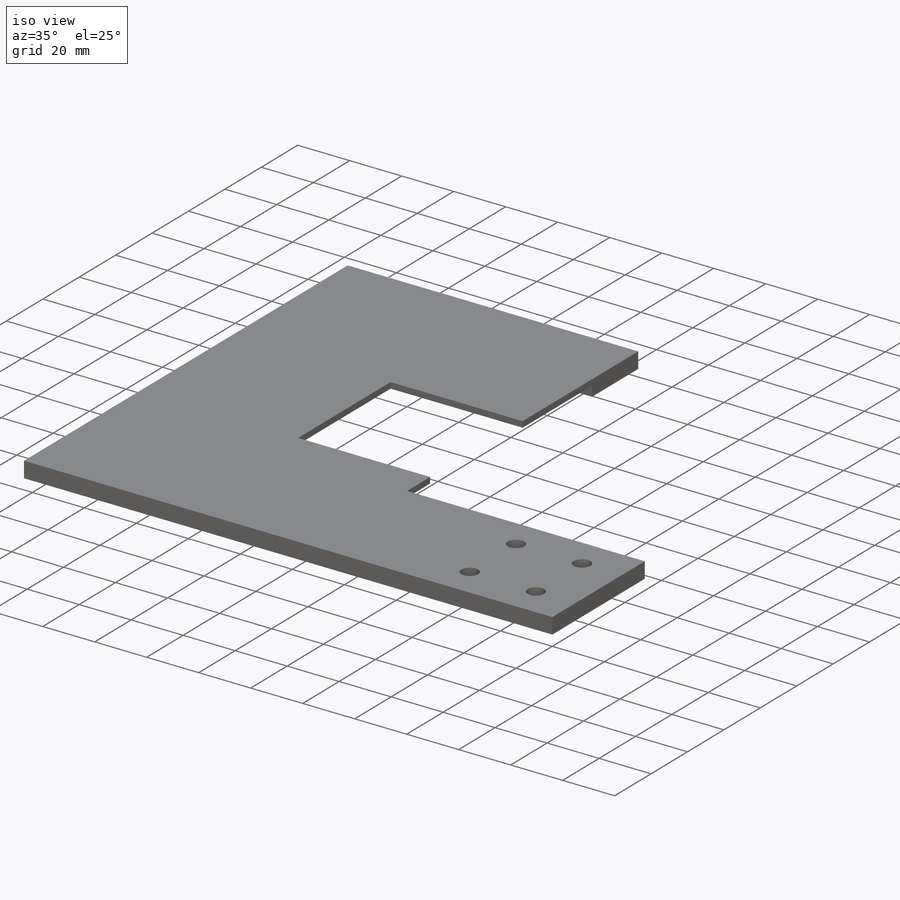
[diagram: iso view]
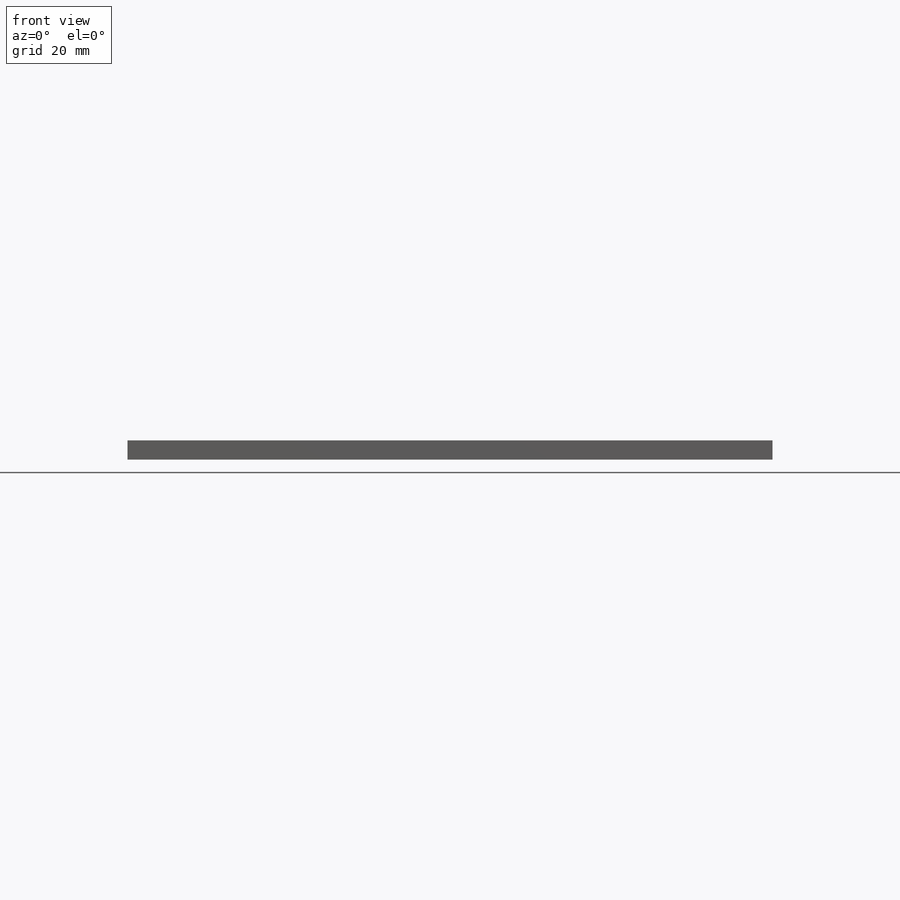
[diagram: front view]
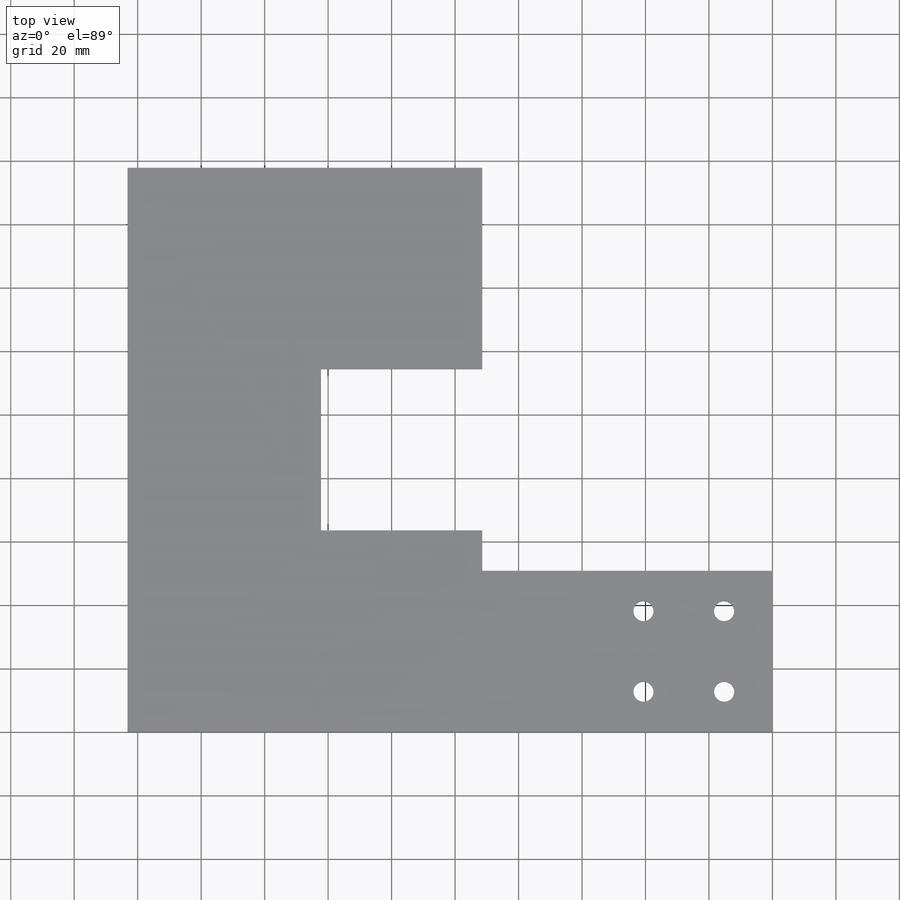
[diagram: top view]
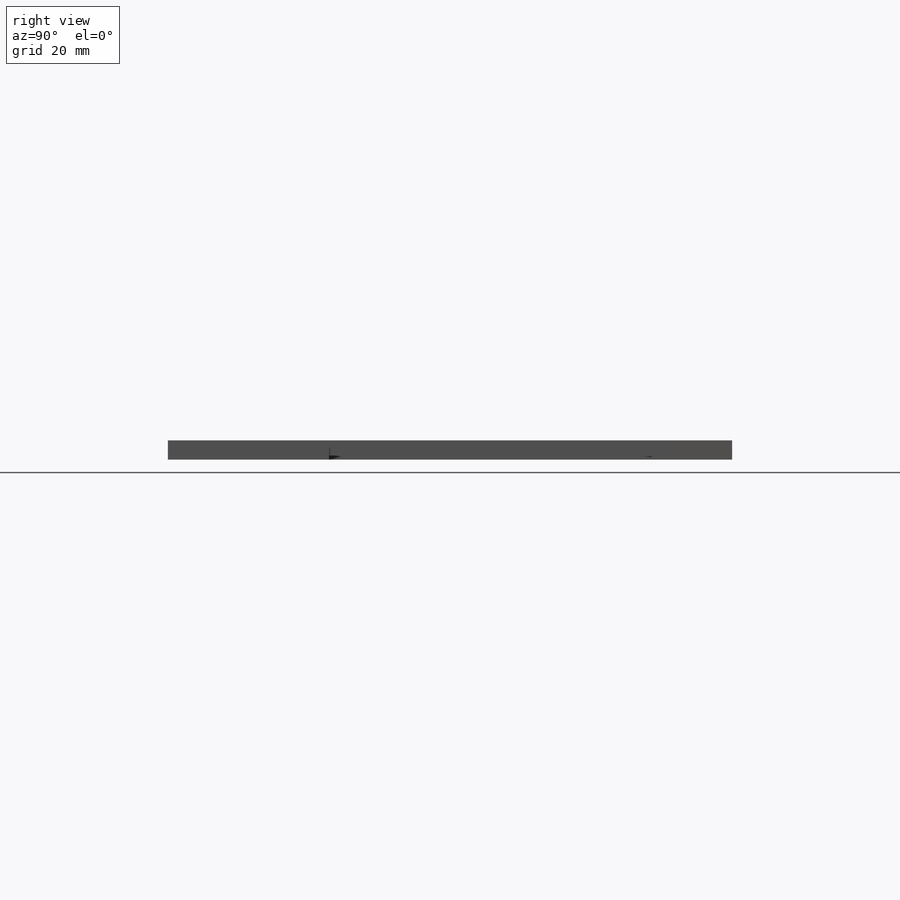
[diagram: right view]
SOLIDWORKS PART (.sldprt)
format: sldprt  version: not decoded by parser v0  size: 305,664 bytes
history: native  units: mm
features: sketch x3, cut_extrude x2, material x1, extrude x1 (+11 scaffold rows collapsed)
feature tree (18):
  scaffold x11  (default folders/planes/origin — collapsed)
  material  "6061-T4 (SS)"
  sketch  "Sketch1"  dims[c1.D3=12.7mm c1.D4=12.7mm c1.D5=12.7mm c1.D6=12.7mm c1.D7=12.7mm c1.D9=12.7mm c1.D11=6.35mm c1.D12=6.35mm c1.D13=6.35mm c1.D14=6.35mm c1.D1=203.2mm c1.D2=203.2mm c2.D3=15.24mm c2.D4=~15.200836mm c2.D5=40.64mm c2.D6=40.64mm c2.D7=12.7mm c2.D8=38.1mm c2.D9=12.7mm c2.D10=38.1mm c2.D15=50.8mm c2.D16=177.8mm c2.D17=152.4mm c2.D18=116.84mm c2.D19=88.9mm c3.D17=50.8mm c3.D20=50.8mm c3.D21=50.8mm c3.D22=25.4mm c3.D23=25.4mm c3.D24=38.1mm c3.D25=6.35mm c4.D17=63.5mm]
  extrude  "Boss-Extrude1"  Depth=6.096mm
  sketch  "Sketch2"  dims[D1=12.7mm D2=12.7mm D3=12.7mm D4=7.62mm]
  sketch  "Sketch3"  dims[c1.D1=25.4mm c1.D2=25.4mm c1.D3=~35.826445mm c1.D4=25.4mm c2.D3=60.96mm c2.D4=63.5mm c2.D1=63.5mm c2.D2=63.5mm c3.D4=7.62mm]
  cut_extrude  "Cut-Extrude1"  Depth=1.27mm
  cut_extrude  "Cut-Extrude2"  Depth=3.81mm
decode coverage: 6 of 6 modeling features carry decoded parameters
note: ~ marks probable driven/reference dimensions
note: suppression state not decoded; provenance and decode notes live in map.json
